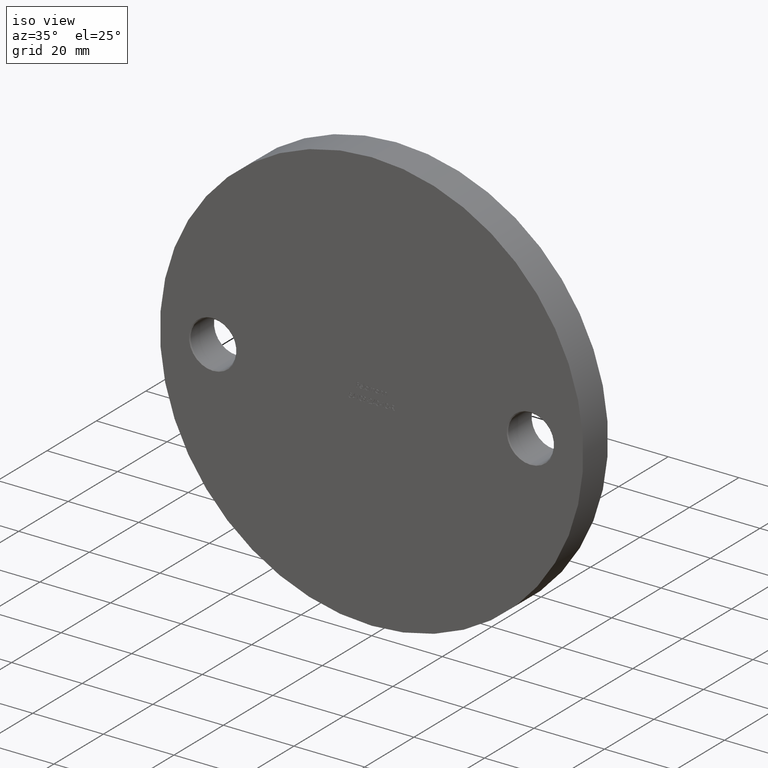
[diagram: clean part render]
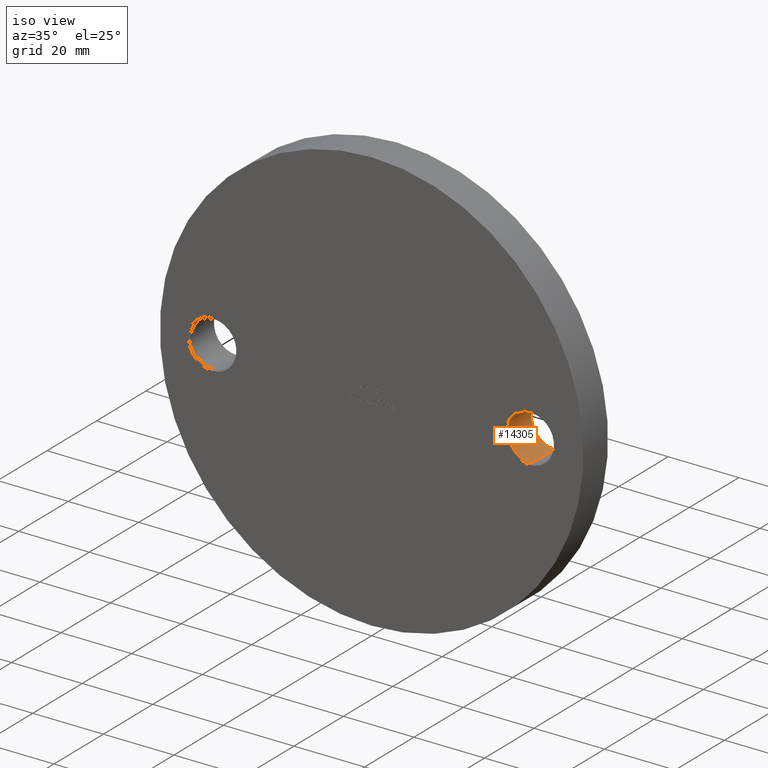
[diagram: same view with one face highlighted and labeled with its STEP entity id]
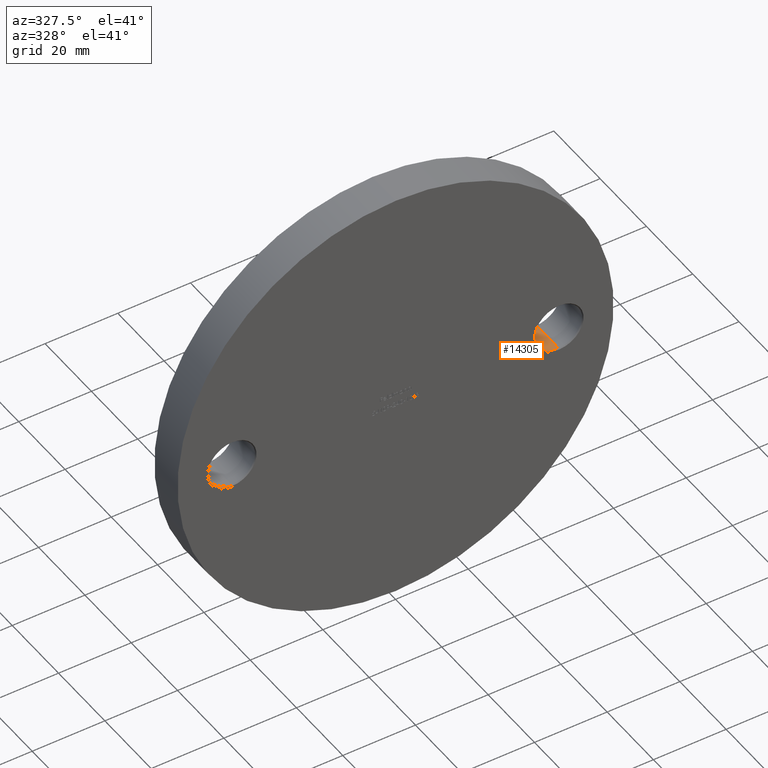
[diagram: same view with one face highlighted and labeled with its STEP entity id]
A machine part, iso view. The second image highlights one B-rep face of the part: STEP entity #14305.
A second angle (auxiliary view) of the same face is appended — the face is thin or edge-on in the first view.
In plain terms, the highlighted cylindrical surface (edge-blend (fillet) strip) has radius 6.5 mm, axis along (-0, -1, -0).
Its self-contained STEP definition (entity closure, byte-faithful):
#141 = VECTOR ( 'NONE', #8319, 1000.000000000000000 ) ;
#159 = EDGE_CURVE ( 'NONE', #3634, #3535, #3590, .T. ) ;
#469 = AXIS2_PLACEMENT_3D ( 'NONE', #3497, #2640, #11693 ) ;
#1455 = VERTEX_POINT ( 'NONE', #13974 ) ;
#1731 = CARTESIAN_POINT ( 'NONE',  ( 45.00000000000000000, 10.00000000000000000, -1.102182119232617911E-14 ) ) ;
#1999 = EDGE_CURVE ( 'NONE', #3634, #12732, #5123, .T. ) ;
#2640 = DIRECTION ( 'NONE',  ( 0.000000000000000000, 1.000000000000000000, 0.000000000000000000 ) ) ;
#2760 = LINE ( 'NONE', #3375, #12666 ) ;
#3332 = ORIENTED_EDGE ( 'NONE', *, *, #159, .T. ) ;
#3375 = CARTESIAN_POINT ( 'NONE',  ( 45.00000000000000000, 10.00000000000000000, 6.499999999999989342 ) ) ;
#3497 = CARTESIAN_POINT ( 'NONE',  ( 45.00000000000000000, 9.750000000000024869, -1.102182119232617911E-14 ) ) ;
#3535 = VERTEX_POINT ( 'NONE', #5021 ) ;
#3544 = AXIS2_PLACEMENT_3D ( 'NONE', #5827, #8037, #5876 ) ;
#3590 = CIRCLE ( 'NONE', #469, 6.500000000000000888 ) ;
#3634 = VERTEX_POINT ( 'NONE', #4070 ) ;
#3905 = CARTESIAN_POINT ( 'NONE',  ( 45.00000000000000000, 10.00000000000000000, -6.500000000000011546 ) ) ;
#4070 = CARTESIAN_POINT ( 'NONE',  ( 45.00000000000000000, 9.750000000000024869, -6.500000000000011546 ) ) ;
#4120 = ORIENTED_EDGE ( 'NONE', *, *, #1999, .F. ) ;
#5021 = CARTESIAN_POINT ( 'NONE',  ( 45.00000000000000000, 9.750000000000024869, 6.499999999999989342 ) ) ;
#5099 = EDGE_CURVE ( 'NONE', #1455, #12732, #12313, .T. ) ;
#5123 = LINE ( 'NONE', #3905, #141 ) ;
#5124 = EDGE_CURVE ( 'NONE', #3535, #1455, #2760, .T. ) ;
#5827 = CARTESIAN_POINT ( 'NONE',  ( 45.00000000000000000, 0.2499999999999828748, -1.102182119232617911E-14 ) ) ;
#5876 = DIRECTION ( 'NONE',  ( 0.000000000000000000, 0.000000000000000000, 1.000000000000000000 ) ) ;
#6154 = EDGE_LOOP ( 'NONE', ( #3332, #6812, #8623, #4120 ) ) ;
#6258 = DIRECTION ( 'NONE',  ( 0.000000000000000000, 0.000000000000000000, -1.000000000000000000 ) ) ;
#6587 = CYLINDRICAL_SURFACE ( 'NONE', #11434, 6.500000000000000888 ) ;
#6812 = ORIENTED_EDGE ( 'NONE', *, *, #5124, .T. ) ;
#7396 = DIRECTION ( 'NONE',  ( -0.000000000000000000, -1.000000000000000000, -0.000000000000000000 ) ) ;
#8037 = DIRECTION ( 'NONE',  ( -0.000000000000000000, -1.000000000000000000, -0.000000000000000000 ) ) ;
#8319 = DIRECTION ( 'NONE',  ( -0.000000000000000000, -1.000000000000000000, -0.000000000000000000 ) ) ;
#8420 = CARTESIAN_POINT ( 'NONE',  ( 45.00000000000000000, 0.2499999999999828748, -6.500000000000011546 ) ) ;
#8623 = ORIENTED_EDGE ( 'NONE', *, *, #5099, .T. ) ;
#11434 = AXIS2_PLACEMENT_3D ( 'NONE', #1731, #7396, #6258 ) ;
#11693 = DIRECTION ( 'NONE',  ( 0.000000000000000000, 0.000000000000000000, 1.000000000000000000 ) ) ;
#11751 = FACE_OUTER_BOUND ( 'NONE', #6154, .T. ) ;
#12313 = CIRCLE ( 'NONE', #3544, 6.500000000000000888 ) ;
#12475 = DIRECTION ( 'NONE',  ( -0.000000000000000000, -1.000000000000000000, -0.000000000000000000 ) ) ;
#12666 = VECTOR ( 'NONE', #12475, 1000.000000000000000 ) ;
#12732 = VERTEX_POINT ( 'NONE', #8420 ) ;
#13974 = CARTESIAN_POINT ( 'NONE',  ( 45.00000000000000000, 0.2499999999999828748, 6.499999999999989342 ) ) ;
#14305 = ADVANCED_FACE ( 'NONE', ( #11751 ), #6587, .F. ) ;